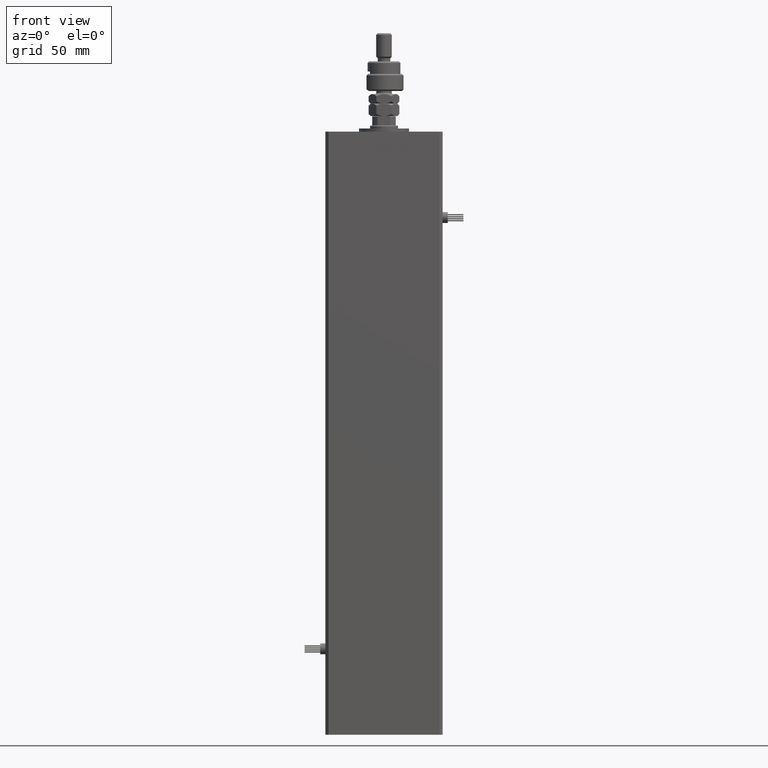
[diagram: clean part render]
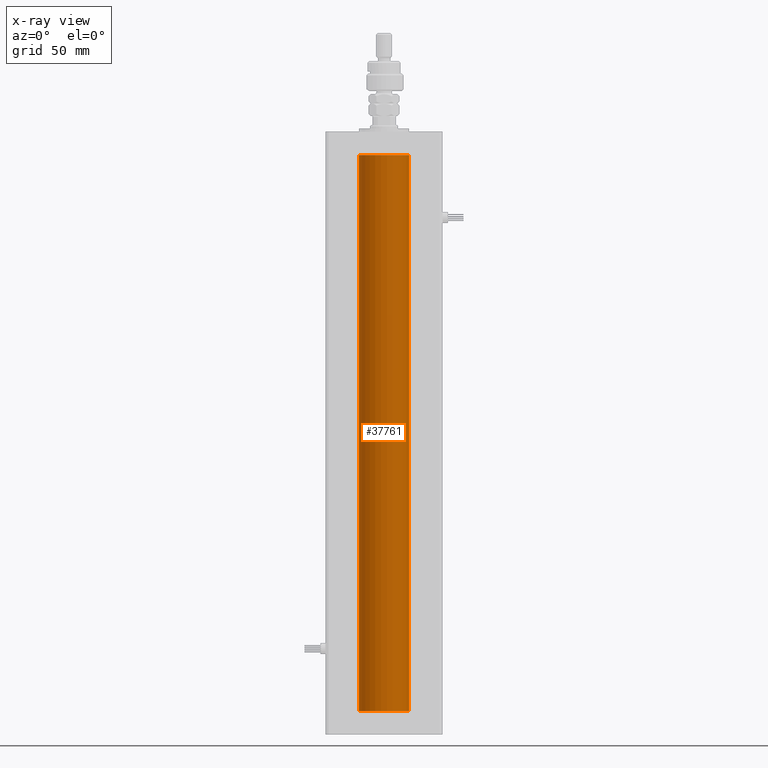
[diagram: x-ray — body ghosted, one internal face saturated and labeled with its STEP entity id]
A machine part, front view, then the same camera in x-ray: the body is ghosted and one INTERNAL B-rep face — a face not visible from any outside direction — is saturated and labeled: STEP entity #37761.
In plain terms, the highlighted cylindrical surface (edge-blend (fillet) strip) has radius 16 mm, axis along (-0, -0, -1).
Its self-contained STEP definition (entity closure, byte-faithful):
#1448 = CYLINDRICAL_SURFACE ( 'NONE', #49636, 16.00000000000000000 ) ;
#2297 = CARTESIAN_POINT ( 'NONE',  ( 16.00000000000000000, 1.959434878635765131E-15, 356.0000000000000000 ) ) ;
#2403 = CARTESIAN_POINT ( 'NONE',  ( -16.00000000000000000, 0.000000000000000000, 356.0000000000000000 ) ) ;
#9945 = ORIENTED_EDGE ( 'NONE', *, *, #32464, .F. ) ;
#10491 = VERTEX_POINT ( 'NONE', #32430 ) ;
#10779 = DIRECTION ( 'NONE',  ( 1.000000000000000000, 0.000000000000000000, 0.000000000000000000 ) ) ;
#11184 = VECTOR ( 'NONE', #20054, 1000.000000000000000 ) ;
#14192 = CIRCLE ( 'NONE', #46716, 16.00000000000000000 ) ;
#14417 = CARTESIAN_POINT ( 'NONE',  ( 16.00000000000000000, 1.959434878635765131E-15, 0.000000000000000000 ) ) ;
#14520 = ORIENTED_EDGE ( 'NONE', *, *, #15299, .T. ) ;
#15299 = EDGE_CURVE ( 'NONE', #44803, #54361, #42745, .T. ) ;
#17043 = VECTOR ( 'NONE', #38075, 1000.000000000000000 ) ;
#20054 = DIRECTION ( 'NONE',  ( -0.000000000000000000, -0.000000000000000000, -1.000000000000000000 ) ) ;
#20334 = LINE ( 'NONE', #55596, #17043 ) ;
#23326 = EDGE_CURVE ( 'NONE', #31689, #10491, #20334, .T. ) ;
#26292 = ORIENTED_EDGE ( 'NONE', *, *, #31018, .T. ) ;
#27868 = EDGE_LOOP ( 'NONE', ( #26292, #14520, #9945, #55681 ) ) ;
#27945 = FACE_OUTER_BOUND ( 'NONE', #27868, .T. ) ;
#31018 = EDGE_CURVE ( 'NONE', #31689, #44803, #14192, .T. ) ;
#31689 = VERTEX_POINT ( 'NONE', #2403 ) ;
#32029 = DIRECTION ( 'NONE',  ( -1.000000000000000000, 0.000000000000000000, 0.000000000000000000 ) ) ;
#32430 = CARTESIAN_POINT ( 'NONE',  ( -16.00000000000000000, 0.000000000000000000, 0.000000000000000000 ) ) ;
#32464 = EDGE_CURVE ( 'NONE', #10491, #54361, #40309, .T. ) ;
#35133 = CARTESIAN_POINT ( 'NONE',  ( 0.000000000000000000, 0.000000000000000000, 0.000000000000000000 ) ) ;
#37761 = ADVANCED_FACE ( 'NONE', ( #27945 ), #1448, .F. ) ;
#38075 = DIRECTION ( 'NONE',  ( -0.000000000000000000, -0.000000000000000000, -1.000000000000000000 ) ) ;
#40309 = CIRCLE ( 'NONE', #54289, 16.00000000000000000 ) ;
#42745 = LINE ( 'NONE', #2297, #11184 ) ;
#44803 = VERTEX_POINT ( 'NONE', #45404 ) ;
#45404 = CARTESIAN_POINT ( 'NONE',  ( 16.00000000000000000, 1.959434878635765131E-15, 356.0000000000000000 ) ) ;
#46716 = AXIS2_PLACEMENT_3D ( 'NONE', #50948, #50667, #10779 ) ;
#49500 = CARTESIAN_POINT ( 'NONE',  ( 0.000000000000000000, 0.000000000000000000, 356.0000000000000000 ) ) ;
#49636 = AXIS2_PLACEMENT_3D ( 'NONE', #49500, #55043, #32029 ) ;
#50667 = DIRECTION ( 'NONE',  ( -0.000000000000000000, 0.000000000000000000, 1.000000000000000000 ) ) ;
#50948 = CARTESIAN_POINT ( 'NONE',  ( 0.000000000000000000, 0.000000000000000000, 356.0000000000000000 ) ) ;
#52334 = DIRECTION ( 'NONE',  ( 1.000000000000000000, 0.000000000000000000, 0.000000000000000000 ) ) ;
#54289 = AXIS2_PLACEMENT_3D ( 'NONE', #35133, #56144, #52334 ) ;
#54361 = VERTEX_POINT ( 'NONE', #14417 ) ;
#55043 = DIRECTION ( 'NONE',  ( -0.000000000000000000, -0.000000000000000000, -1.000000000000000000 ) ) ;
#55596 = CARTESIAN_POINT ( 'NONE',  ( -16.00000000000000000, 0.000000000000000000, 356.0000000000000000 ) ) ;
#55681 = ORIENTED_EDGE ( 'NONE', *, *, #23326, .F. ) ;
#56144 = DIRECTION ( 'NONE',  ( -0.000000000000000000, 0.000000000000000000, 1.000000000000000000 ) ) ;